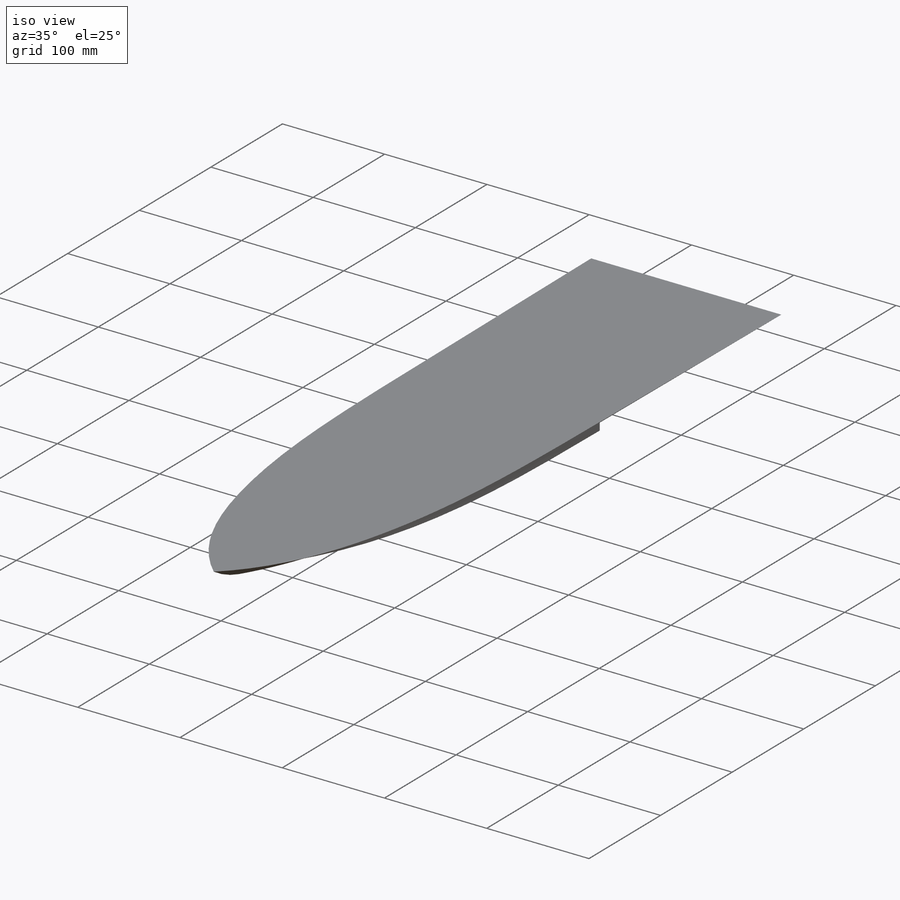
[diagram: iso view]
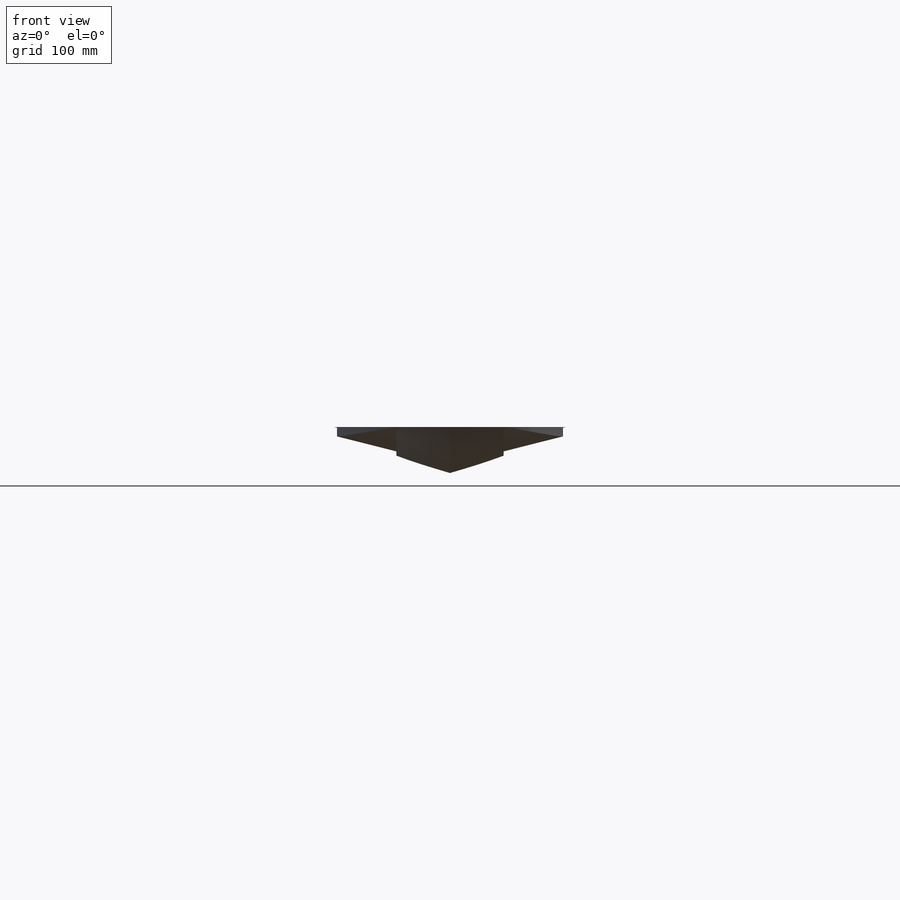
[diagram: front view]
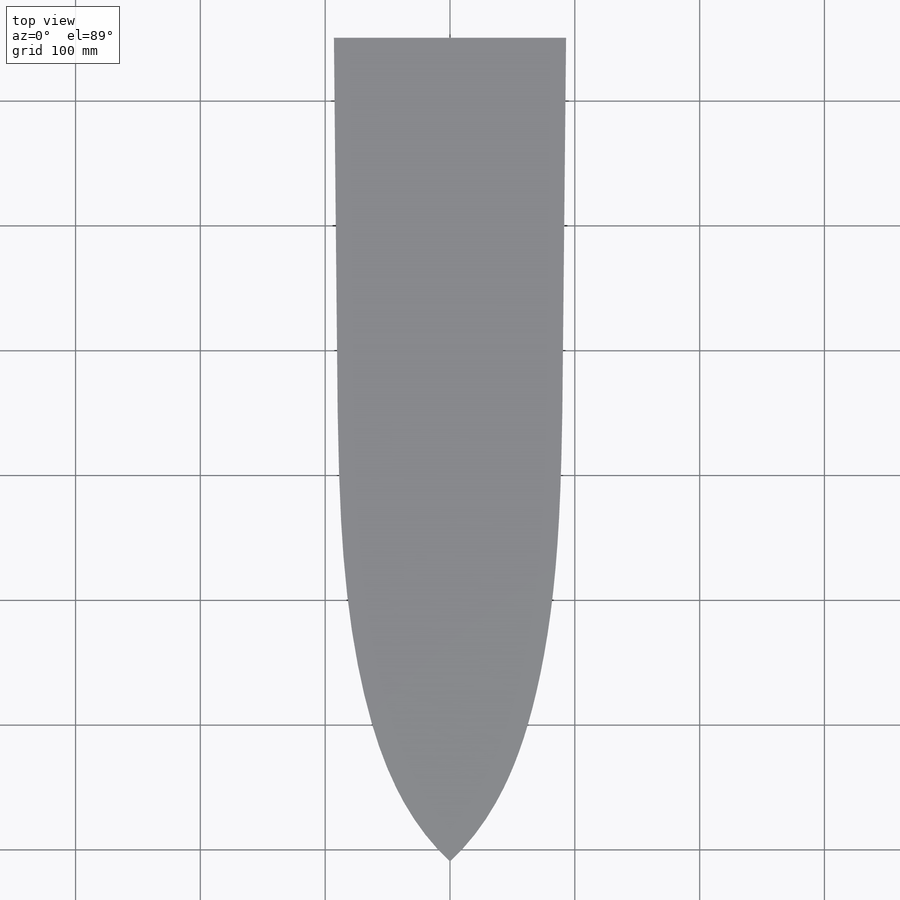
[diagram: top view]
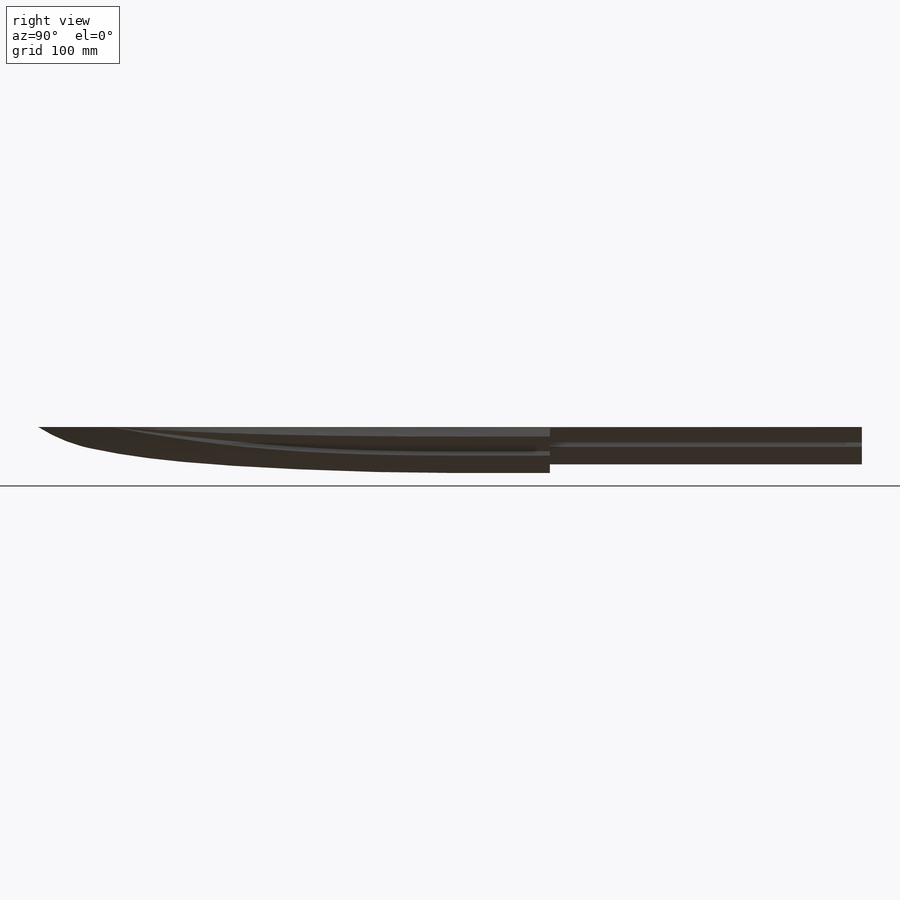
[diagram: right view]
SOLIDWORKS PART (.sldprt)
format: sldprt  version: not decoded by parser v0  size: 513,024 bytes
history: native  units: mm
features: sketch x19, plane x6, material x1, mirror x1 (+10 scaffold rows collapsed)
feature tree (37):
  scaffold x10  (default folders/planes/origin — collapsed)
  material  "Matériau <non spécifié>"
  plane  "Plan de face"
  plane  "Plan de dessus"
  plane  "Plan de droite"
  sketch  "Esquisse1"  dims[c1.D1=170.0mm c1.D2=43.0mm c1.D3=43.0mm c1.D4=3.5mm c1.D5=3.5mm c1.D6=7.0mm c1.D7=7.0mm c1.D8=50.0mm c1.D9=33.0mm c1.D10=~175.890547mm c1.186=186.0mm c2.D1=93.0mm c2.D9=50.0mm c2.D10=12.0mm c2.D11=93.0mm c3.D10=~13.157895mm c4.D10=17.0deg c4.D12=~50.601944mm c5.D12=17.0deg c5.D10=~45.438481mm c6.D10=15.0deg c6.D12=~50.492187mm c7.D12=15.0deg c7.D13=~45.683558mm c8.D13=15.0deg c8.D14=49.0mm c9.D14=15.0deg c9.D10=~127.677446mm c10.D10=17.0deg c10.D12=~46.010437mm c11.D12=17.0deg c11.D10=~179.804155mm c12.D10=17.0deg c12.D12=44.0mm c13.D12=17.0deg c13.D13=49.0mm c14.D13=14.0deg c14.D14=49.0mm c15.D14=14.0deg c15.D15=~174.682733mm c16.D15=73.0deg c16.D10=~174.682733mm c17.D10=72.0deg c17.D12=~175.52705mm c18.D12=76.0deg c18.D13=44.0mm c19.D13=72.0deg c19.D14=~50.500068mm c20.D14=76.0deg c20.D15=50.0mm]
  sketch  "Esquisse2"  dims[c1.D2=~365.191384mm c1.D1=350.0mm c2.D2=~50.263158mm c2.D1=350.0mm c3.D2=24.0mm c3.D3=35.0mm c3.D4=10.5mm c3.D1=49.0mm c4.D2=50.0mm c4.D3=44.0mm c4.D4=33.0mm c4.D5=410.0mm c4.D6=430.0mm c4.D7=410.0mm c4.D8=350.0mm c4.D9=245.0mm c4.D10=139.0mm c4.D11=410.0mm c5.D5=16.0mm c5.D11=1.0mm c5.D1=430.0mm c5.D3=50.0mm c5.D4=49.5mm c6.D5=47.0mm c6.D6=42.0mm c6.D7=30.0mm c6.D8=8.6mm]
  plane  "Plan1"
  plane  "Plan2"
  sketch  "Esquisse3"  dims[c1.D5=~371.025382mm c1.D8=~375.043742mm c1.D14=~370.198793mm c1.D1=83.0mm c1.D2=71.0mm c1.D3=54.5mm c1.D4=39.0mm c2.D5=670.0mm c2.D6=21.0mm c2.D7=320.0mm c2.D1=670.0mm c2.D2=320.0mm c2.D3=35.78mm c2.D4=45.0mm c3.D5=74.0mm c3.D6=86.0mm c3.D1=93.0mm c3.D8=~319.984782mm c4.D8=~1.064707deg c5.D8=320.0mm c6.D8=~0.505926deg c7.D8=186.0mm c7.D2=~329.230463mm c8.D2=~0.505926deg c9.D2=~90.17763mm c9.D8=~95.828616mm c10.D2=~90.17763mm c10.D8=~329.230463mm c10.D1=93.0mm c11.D8=~90.174412mm c11.D9=~90.17763mm c11.D10=24.0mm c11.D11=48.0mm c11.D12=76.0mm c11.D13=88.5mm c11.D14=320.0mm c11.D2=93.0mm c12.D8=~90.163787mm c12.D9=~90.17763mm c13.D8=90.0mm c13.D9=90.0mm c13.D10=86.0mm c13.D11=74.0mm c13.D12=45.0mm c13.D13=20.0mm c13.D14=360.0mm c13.D15=660.0mm c13.D16=360.0mm c13.D17=45.32mm c13.D3=35.78mm c13.D4=45.32mm c13.D5=69.27mm c13.D6=136.07mm c13.D7=233.31mm c14.D10=84.4mm]
  plane  "Plan3"
  sketch  "Esquisse4"  dims[D1=0.0mm]
  sketch  "Esquisse5"
  sketch  "Esquisse7"
  sketch  "Esquisse9"
  sketch  "Esquisse3D1"
  sketch  "Surface-Plan2"
  sketch  "Surface-Plan3"
  sketch  "Surface-Plan4"
  sketch  "Esquisse10"
  sketch  "Esquisse11"
  sketch  "Esquisse12"
  sketch  "Esquisse13"
  sketch  "Esquisse16"
  sketch  "Esquisse17"
  sketch  "Esquisse18"
  mirror  "Symétrie1"
  sketch  "Esquisse19"  dims[c1.D1=7.0mm c1.D2=7.0mm c2.D1=0.0mm c3.D1=10.0mm c3.D2=10.0mm c3.D5=10.0mm c3.D6=10.0mm c3.D7=5.0mm]
decode coverage: 5 of 20 modeling features carry decoded parameters
note: ~ marks probable driven/reference dimensions
note: suppression state not decoded; provenance and decode notes live in map.json
